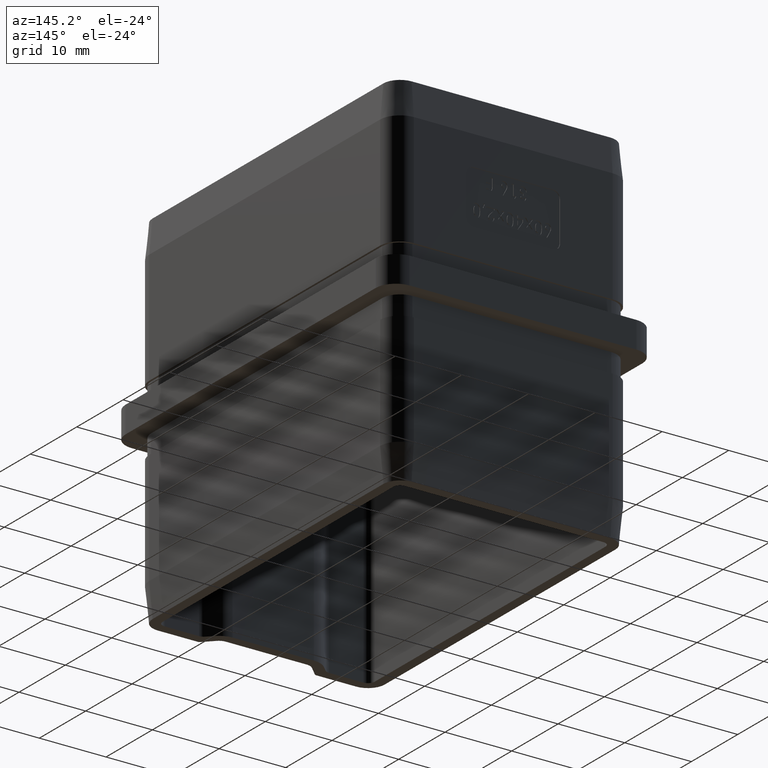
[diagram: clean part render]
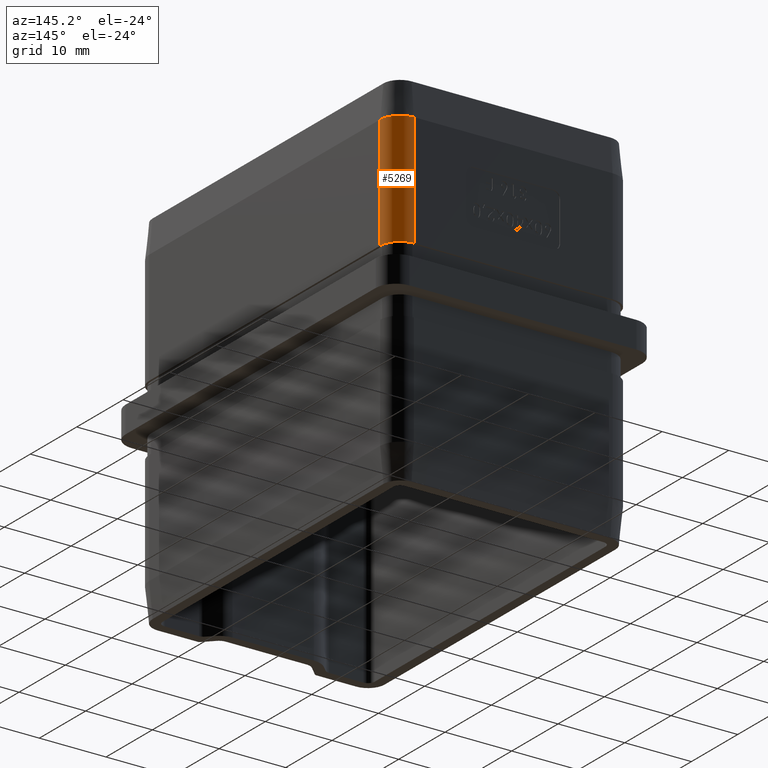
[diagram: same view with one face highlighted and labeled with its STEP entity id]
A machine part, auxiliary view. The second image highlights one B-rep face of the part: STEP entity #5269.
In plain terms, the highlighted cylindrical surface (edge-blend (fillet) strip) has radius 3 mm, axis along (0, 0, -1).
Its self-contained STEP definition (entity closure, byte-faithful):
#68 = VECTOR ( 'NONE', #508, 1000.000000000000000 ) ;
#434 = CARTESIAN_POINT ( 'NONE',  ( 17.89999999999999100, 24.89999999999999100, 27.00000000000000000 ) ) ;
#508 = DIRECTION ( 'NONE',  ( -0.0000000000000000000, -0.0000000000000000000, 1.000000000000000000 ) ) ;
#1297 = DIRECTION ( 'NONE',  ( -1.000000000000000000, 0.0000000000000000000, 0.0000000000000000000 ) ) ;
#1638 = EDGE_CURVE ( 'NONE', #15769, #3365, #4559, .T. ) ;
#2817 = AXIS2_PLACEMENT_3D ( 'NONE', #19991, #14244, #21959 ) ;
#3365 = VERTEX_POINT ( 'NONE', #4164 ) ;
#4073 = LINE ( 'NONE', #16324, #18434 ) ;
#4164 = CARTESIAN_POINT ( 'NONE',  ( 17.89999999999998400, 24.89999999999999100, 5.000000000000000000 ) ) ;
#4260 = AXIS2_PLACEMENT_3D ( 'NONE', #20468, #12678, #18310 ) ;
#4559 = CIRCLE ( 'NONE', #4260, 2.999999999999999100 ) ;
#4994 = DIRECTION ( 'NONE',  ( 0.0000000000000000000, 0.0000000000000000000, -1.000000000000000000 ) ) ;
#5143 = CARTESIAN_POINT ( 'NONE',  ( 14.89999999999999000, 24.89999999999999100, 27.00000000000000000 ) ) ;
#5269 = ADVANCED_FACE ( 'NONE', ( #22510 ), #18542, .T. ) ;
#5457 = ORIENTED_EDGE ( 'NONE', *, *, #8534, .F. ) ;
#8287 = ORIENTED_EDGE ( 'NONE', *, *, #10802, .F. ) ;
#8534 = EDGE_CURVE ( 'NONE', #10507, #15769, #4073, .T. ) ;
#9347 = EDGE_LOOP ( 'NONE', ( #24629, #8287, #25258, #5457 ) ) ;
#10507 = VERTEX_POINT ( 'NONE', #17219 ) ;
#10802 = EDGE_CURVE ( 'NONE', #3365, #23208, #13812, .T. ) ;
#12678 = DIRECTION ( 'NONE',  ( -0.0000000000000000000, -0.0000000000000000000, -1.000000000000000000 ) ) ;
#13812 = LINE ( 'NONE', #434, #68 ) ;
#14244 = DIRECTION ( 'NONE',  ( -0.0000000000000000000, -0.0000000000000000000, -1.000000000000000000 ) ) ;
#15769 = VERTEX_POINT ( 'NONE', #22893 ) ;
#16142 = EDGE_CURVE ( 'NONE', #10507, #23208, #21302, .T. ) ;
#16324 = CARTESIAN_POINT ( 'NONE',  ( 14.89999999999999000, 27.89999999999999100, 27.00000000000000000 ) ) ;
#17219 = CARTESIAN_POINT ( 'NONE',  ( 14.89999999999998600, 27.89999999999999500, 22.00000000000000000 ) ) ;
#18310 = DIRECTION ( 'NONE',  ( -1.000000000000000000, 0.0000000000000000000, 0.0000000000000000000 ) ) ;
#18434 = VECTOR ( 'NONE', #22074, 1000.000000000000000 ) ;
#18542 = CYLINDRICAL_SURFACE ( 'NONE', #23282, 2.999999999999999100 ) ;
#19991 = CARTESIAN_POINT ( 'NONE',  ( 14.89999999999999000, 24.89999999999999100, 22.00000000000000000 ) ) ;
#20468 = CARTESIAN_POINT ( 'NONE',  ( 14.89999999999999000, 24.89999999999999100, 5.000000000000000000 ) ) ;
#21302 = CIRCLE ( 'NONE', #2817, 3.000000000000002700 ) ;
#21659 = CARTESIAN_POINT ( 'NONE',  ( 17.89999999999999100, 24.89999999999999100, 22.00000000000000000 ) ) ;
#21959 = DIRECTION ( 'NONE',  ( -1.000000000000000000, 0.0000000000000000000, 0.0000000000000000000 ) ) ;
#22074 = DIRECTION ( 'NONE',  ( 0.0000000000000000000, 0.0000000000000000000, -1.000000000000000000 ) ) ;
#22510 = FACE_OUTER_BOUND ( 'NONE', #9347, .T. ) ;
#22893 = CARTESIAN_POINT ( 'NONE',  ( 14.89999999999998600, 27.89999999999999100, 5.000000000000000000 ) ) ;
#23208 = VERTEX_POINT ( 'NONE', #21659 ) ;
#23282 = AXIS2_PLACEMENT_3D ( 'NONE', #5143, #4994, #1297 ) ;
#24629 = ORIENTED_EDGE ( 'NONE', *, *, #16142, .T. ) ;
#25258 = ORIENTED_EDGE ( 'NONE', *, *, #1638, .F. ) ;